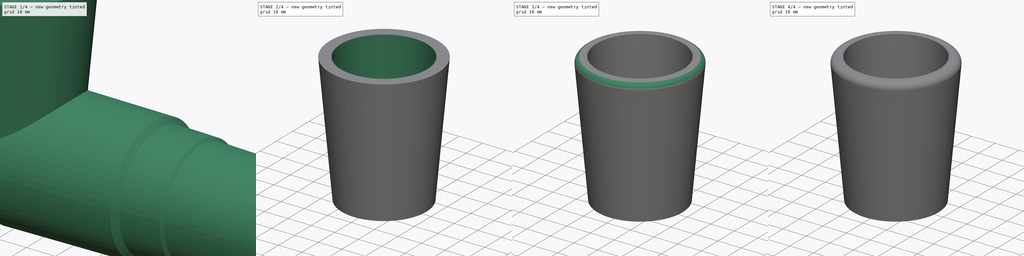
[diagram: build sequence overview — one tinted view per stage of 4, left to right]
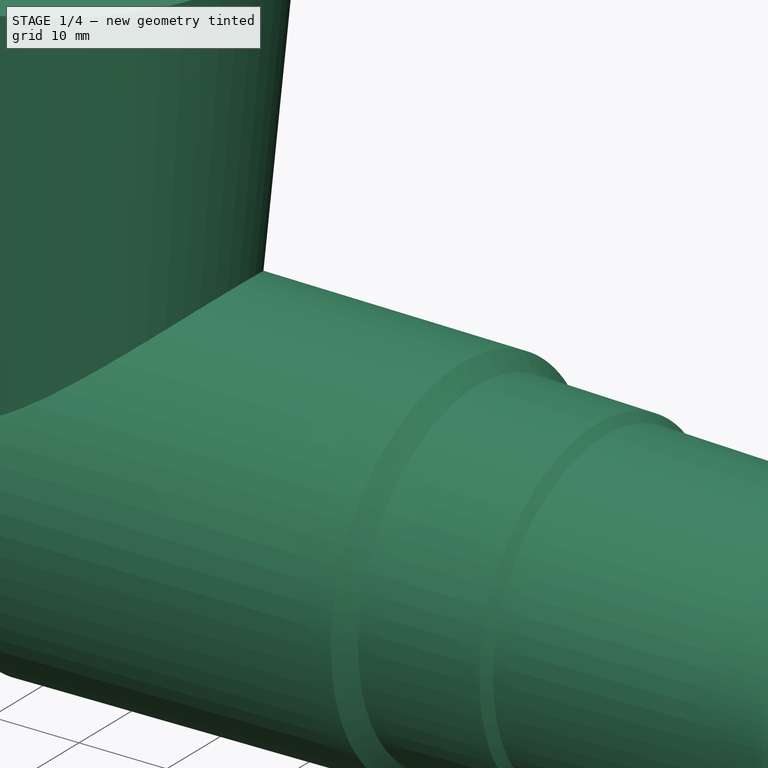
[diagram: stage 1 of 4 — iso view after this stage's code; geometry added in this stage tinted green]
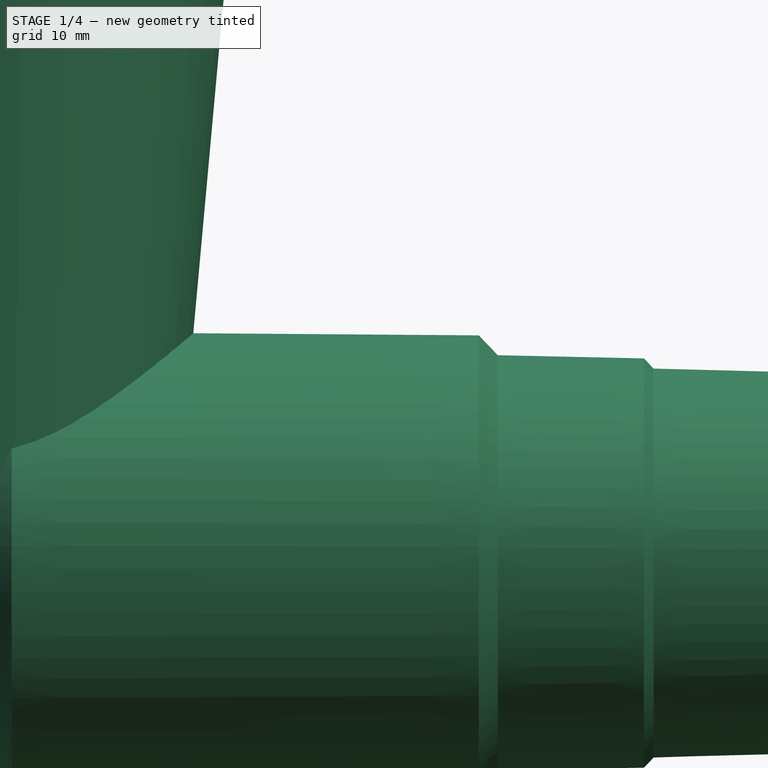
[diagram: stage 1 of 4 — front view after this stage's code; geometry added in this stage tinted green]
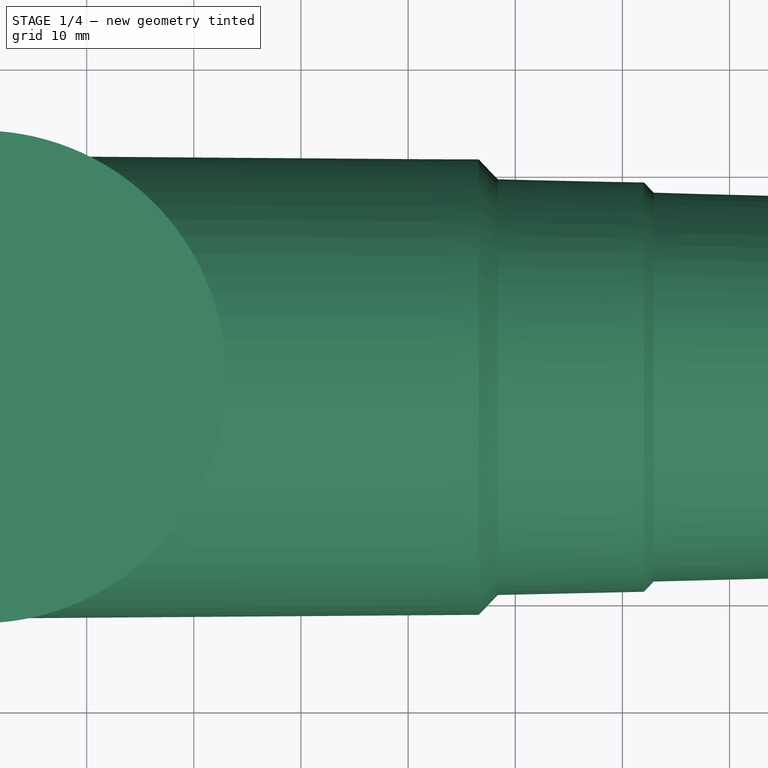
[diagram: stage 1 of 4 — top view after this stage's code; geometry added in this stage tinted green]
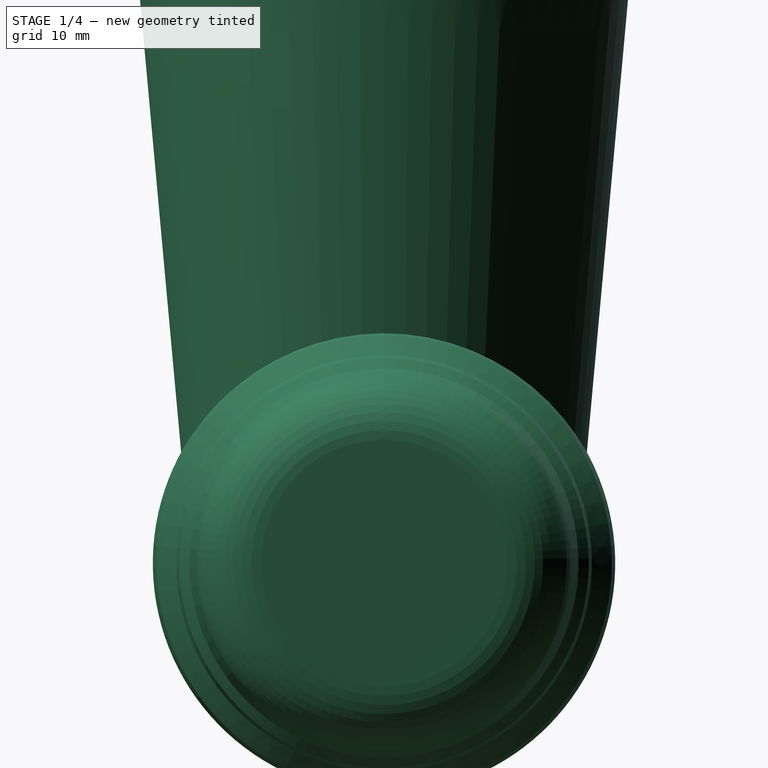
[diagram: stage 1 of 4 — right view after this stage's code; geometry added in this stage tinted green]
FCSTD DOCUMENT  (FreeCAD 0.19R)
Label: BoschPalmSander
License: Creative Commons Attribution-NonCommercial
LicenseURL: http://creativecommons.org/licenses/by-nc/4.0/
objects: Sketcher::SketchObject×2, PartDesign::Body×2, Part::Cut×2, Part::Cone×1, PartDesign::Revolution×1, PartDesign::Chamfer×1, Part::Compound×1, Part::Offset×1, PartDesign::AdditiveCylinder×1, PartDesign::Pad×1, PartDesign::PolarPattern×1, Part::Feature×1, Part::Fillet×1
note: 20 computed .brp shape members not serialized (recipe doc carries the construction recipe); baked Part::Feature solids carry a one-line shape summary decoded from their .brp

FEATURE [Part::Cone] Cone
  Angle = 360
  AttacherType = Attacher::AttachEngine3D
  Height = 55
  Radius1 = 18
  Radius2 = 23
FEATURE [Sketcher::SketchObject] Sketch
  FullyConstrained = false
  MapMode = 5
  Placement = pos=(0,0,0) rot=(1,0,0;1.5708rad)
  Support = -> [XZ_Plane]
  sketch-geometry (12):
    g0: LineSegment StartX=0 StartY=21.6 StartZ=0 EndX=46.5987 EndY=21.25 EndZ=0
    g1: LineSegment StartX=46.5987 StartY=21.25 StartZ=0 EndX=48.3691 EndY=19.4 EndZ=0
    g2: LineSegment StartX=48.3691 StartY=19.4 StartZ=0 EndX=62.0091 EndY=19.1 EndZ=0
    g3: LineSegment StartX=62.0091 StartY=19.1 StartZ=0 EndX=62.9111 EndY=18.15 EndZ=0
    g4: LineSegment StartX=62.9111 StartY=18.15 StartZ=0 EndX=87.989 EndY=17.5 EndZ=0
    g5: LineSegment StartX=98.5 StartY=0 StartZ=0 EndX=0 EndY=0 EndZ=0
    g6: LineSegment StartX=0 StartY=0 StartZ=0 EndX=0 EndY=21.6 EndZ=0
    g7: LineSegment StartX=46.5987 StartY=21.25 StartZ=0 EndX=48.3691 EndY=19.4 EndZ=0
    g8: LineSegment StartX=62.0091 StartY=19.1 StartZ=0 EndX=62.9111 EndY=18.15 EndZ=0
    g9: LineSegment StartX=87.989 StartY=17.5 StartZ=0 EndX=92.5 EndY=17.5 EndZ=0
    g10: ArcOfCircle CenterX=92.5 CenterY=11.5 CenterZ=0 NormalX=0 NormalY=0 NormalZ=1 AngleXU=0 Radius=6 StartAngle=1.66667e-07 EndAngle=1.5708
    g11: LineSegment StartX=98.5 StartY=11.5 StartZ=0 EndX=98.5 EndY=0 EndZ=0
  constraints (34):
    c: PointOnObject(g0,g-2)
    c: Coincident(g0,g1)
    c: Coincident(g1,g2)
    c: Coincident(g3,g4)
    c: Coincident(g5,g6)
    c: Coincident(g6,g0)
    c: PointOnObject(g5,g-2)
    c: Distance(g0) = 46.6
    c: Distance(g-1,g0) = 21.6
    c: DistanceY(g0) = 21.25
    c: DistanceY(g1) = 19.4
    c: DistanceY(g2) = 19.1
    c: DistanceY(g3) = 18.15
    c: DistanceY(g4) = 17.5
    c: Horizontal(g5)
    c: PointOnObject(g7,g0)
    c: PointOnObject(g7,g2)
    c: Angle(g2,g7) = 2.35619
    c: Distance(g5) = 98.5
    c: Angle(g4,g8) = 2.35619
    c: DistanceY(g1,g7) = 1.85
    c: Coincident(g2,g3)
    c: Coincident(g2,g8)
    c: DistanceX(g2,g2) = 13.64
    c: Coincident(g3,g8)
    c: Distance(g3) = 1.31
    c: Angle(g2,g1) = 2.35619
    c: Horizontal(g9)
    c: Tangent(g10,g9) = 1.5708
    c: PointOnObject(g5,g-1)
    c: Coincident(g11,g10)
    c: Coincident(g11,g5)
    c: Vertical(g11)
    c: Coincident(g4,g9)
FEATURE [PartDesign::Revolution] Revolution
  Angle = 360
  Axis = (1,0,0)
  Base = (0,0,0)
  Placement = pos=(0,0,0) rot=(1,0,0;1.5708rad)
  Profile = -> Sketch
  ReferenceAxis = -> X_Axis
FEATURE [PartDesign::Chamfer] Chamfer
  Angle = 45
  Base = -> Revolution [Edge2]
  BaseFeature = -> Revolution
  ChamferType = 0
  FlipDirection = false
  Placement = pos=(0,0,0) rot=(1,0,0;1.5708rad)
  Size = 3
  Size2 = 1
  SupportTransform = false
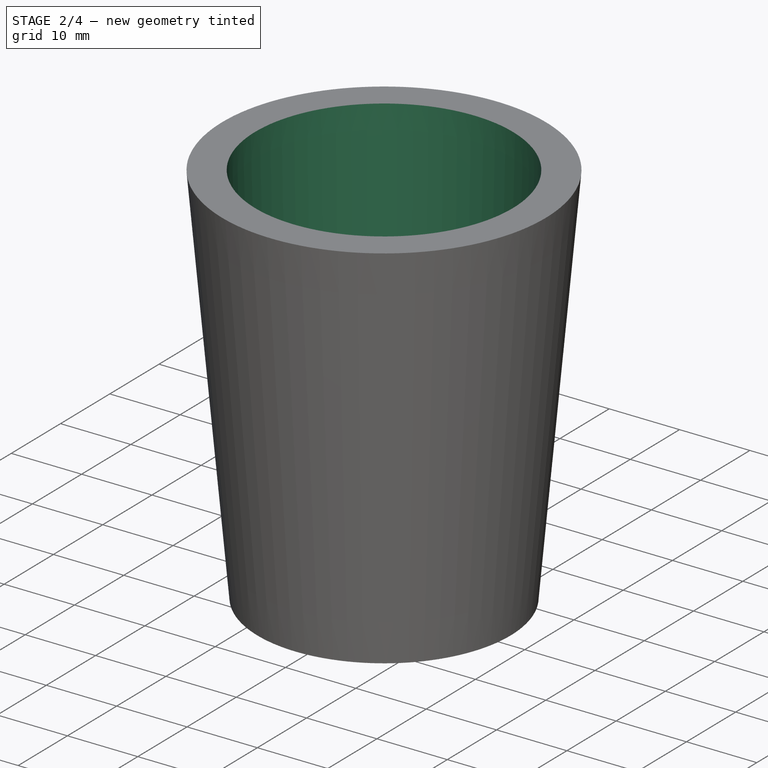
[diagram: stage 2 of 4 — iso view after this stage's code; geometry added in this stage tinted green]
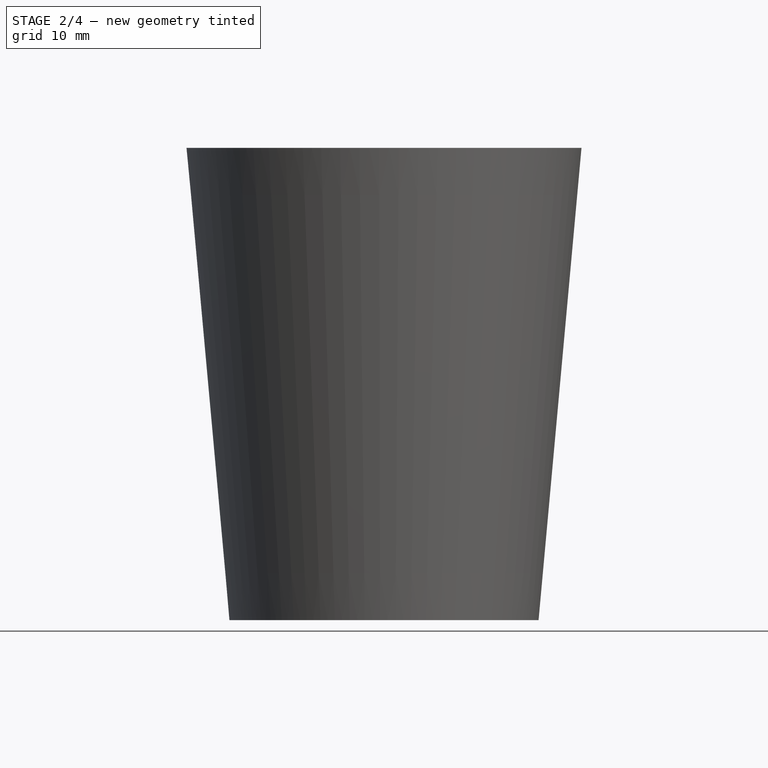
[diagram: stage 2 of 4 — front view after this stage's code; geometry added in this stage tinted green]
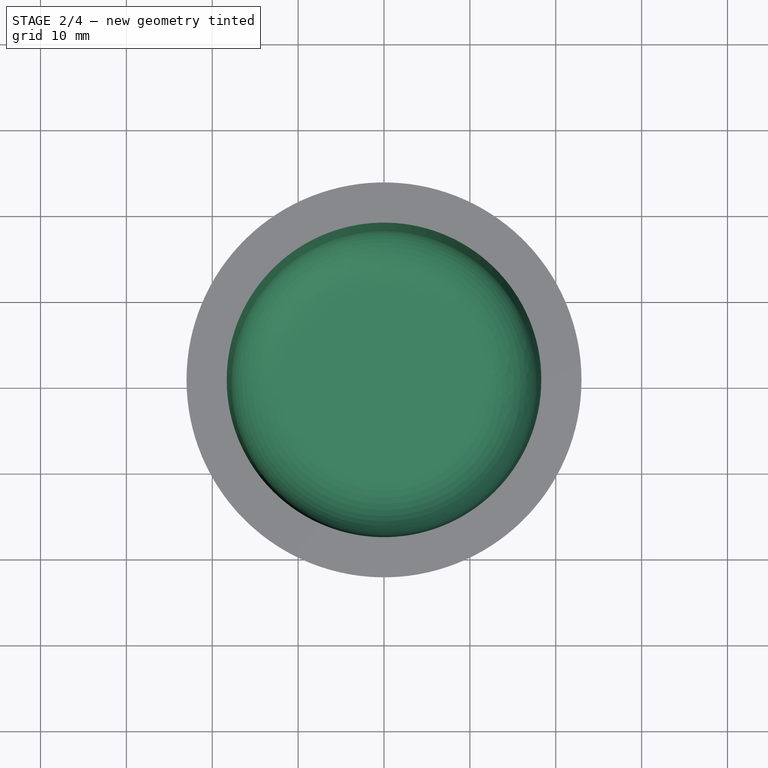
[diagram: stage 2 of 4 — top view after this stage's code; geometry added in this stage tinted green]
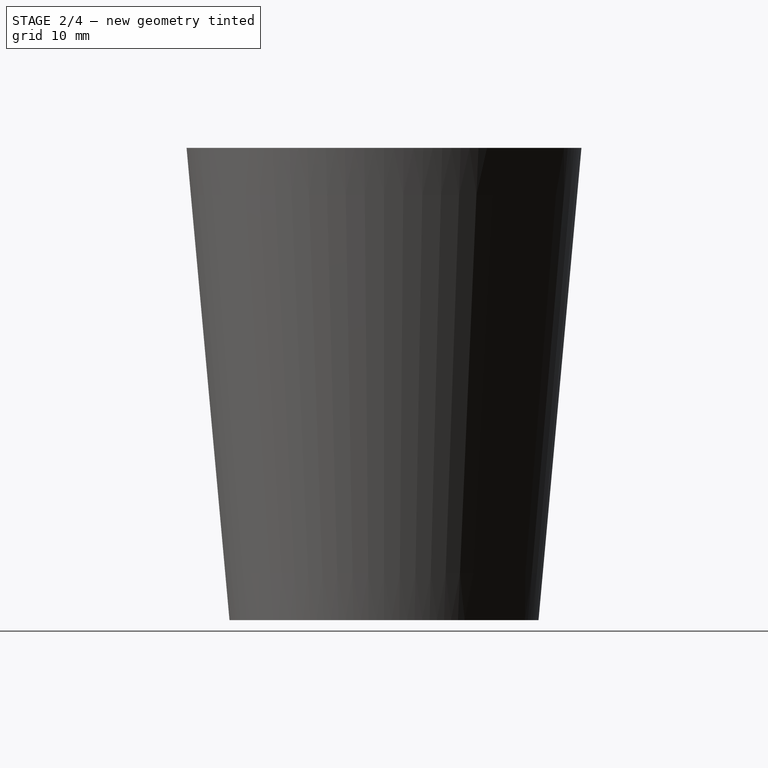
[diagram: stage 2 of 4 — right view after this stage's code; geometry added in this stage tinted green]
FEATURE [PartDesign::Body] Body  label="Nozzle"
  Group = -> [Sketch,Revolution,Chamfer]
  Origin = -> Origin
  Tip = -> Chamfer
FEATURE [Part::Compound] Compound
  Links = -> [Body]
  Placement = pos=(5.8e-15,0,0) rot=(0,0,1;0rad)
FEATURE [Part::Offset] Offset
  Fill = false
  Intersection = false
  Join = 0
  Mode = 0
  Placement = pos=(0,0,123) rot=(0,1,0;1.5708rad)
  SelfIntersection = false
  Source = -> Compound
  Value = 0.3
FEATURE [PartDesign::Body] Body001
  Group = -> [Cylinder,Sketch001,Pad,PolarPattern]
  Origin = -> Origin001
  Tip = -> PolarPattern
FEATURE [Part::Feature] Body001001
  Placement = pos=(0,0,25) rot=(0,1,0;3.14159rad)
  shape: bbox 29.87 x 29.87 x 25 mm, 27 faces (baked)
FEATURE [Part::Cut] Cut
  Base = -> Cone
  Tool = -> Offset
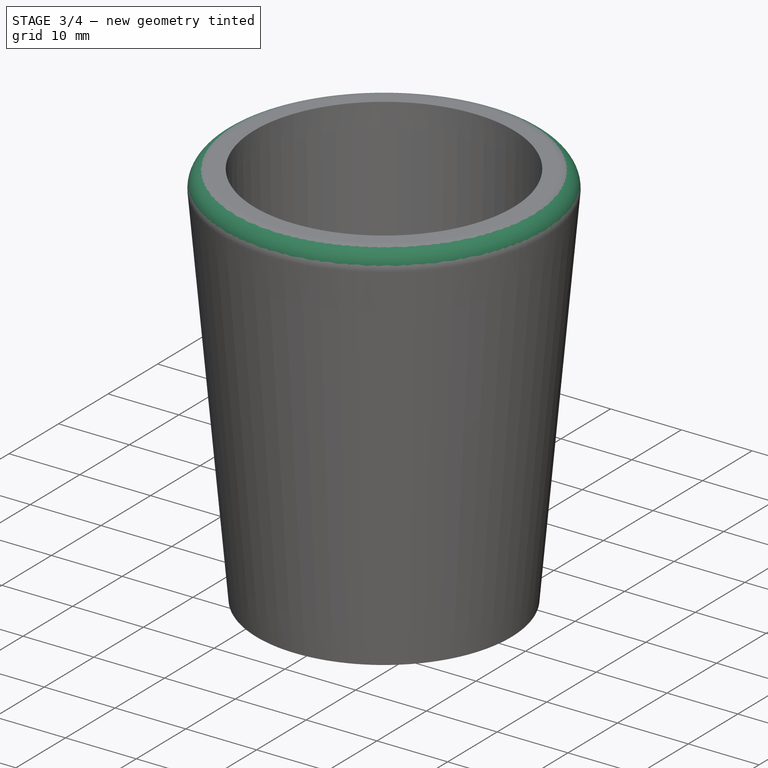
[diagram: stage 3 of 4 — iso view after this stage's code; geometry added in this stage tinted green]
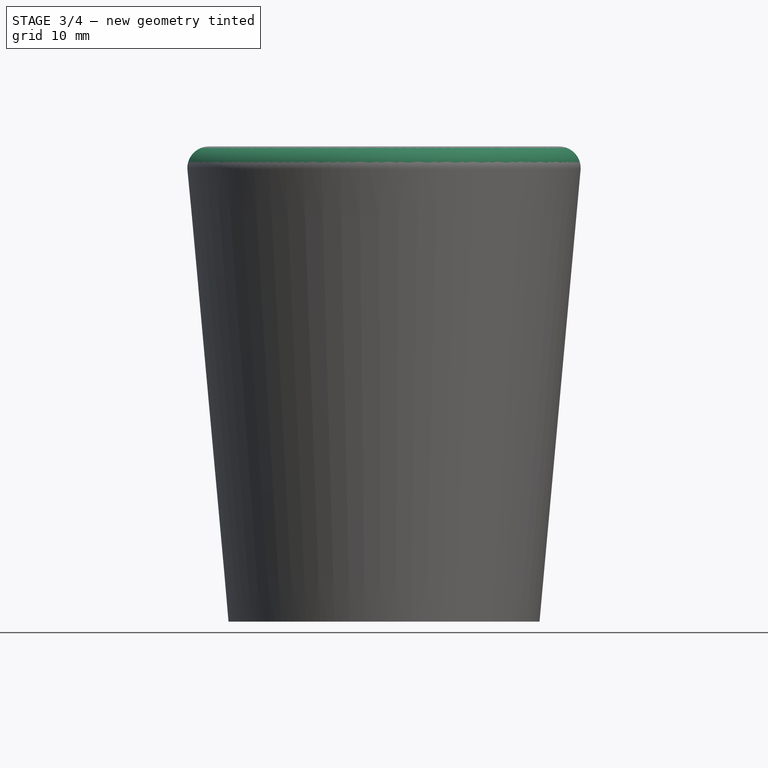
[diagram: stage 3 of 4 — front view after this stage's code; geometry added in this stage tinted green]
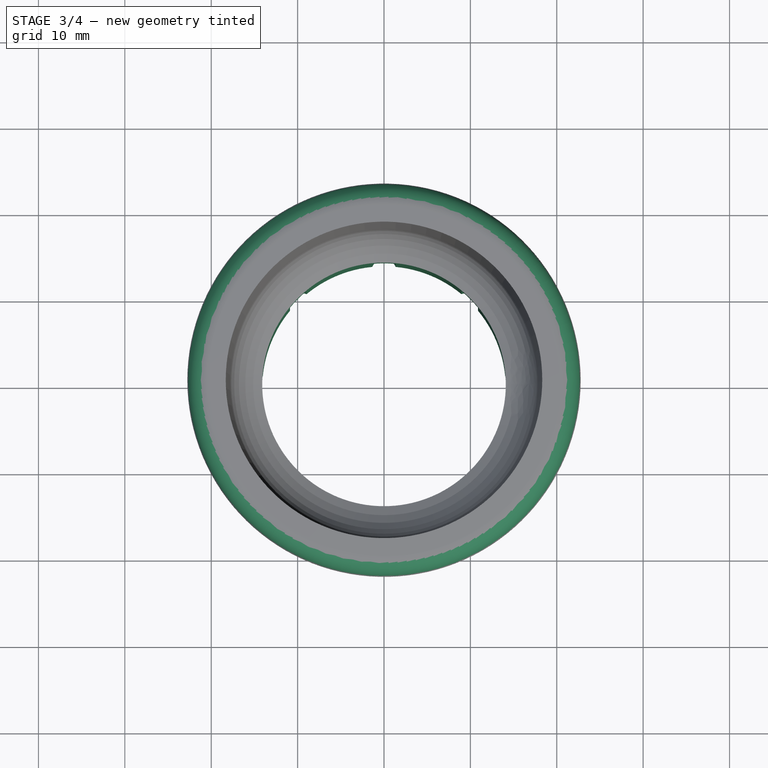
[diagram: stage 3 of 4 — top view after this stage's code; geometry added in this stage tinted green]
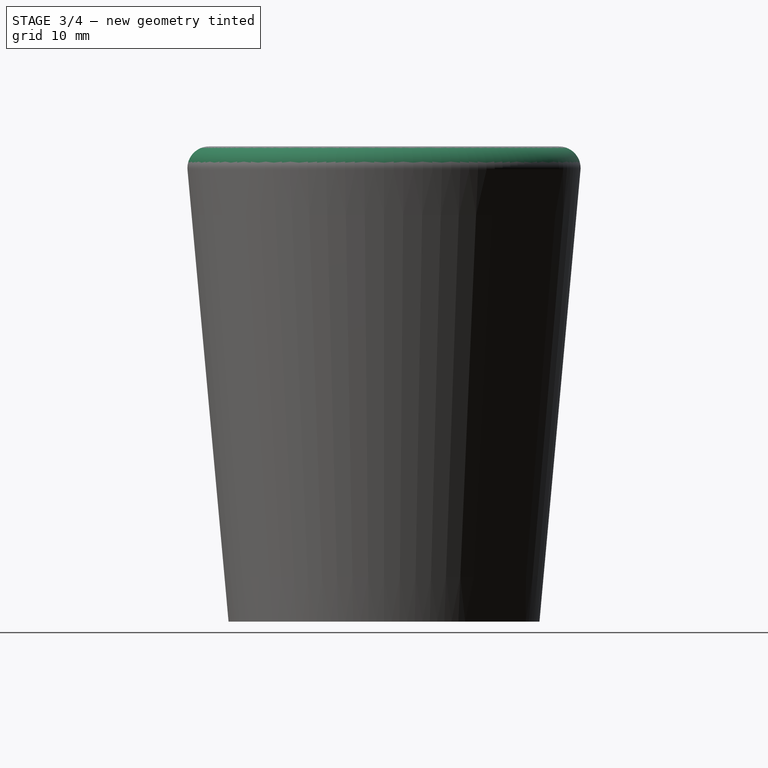
[diagram: stage 3 of 4 — right view after this stage's code; geometry added in this stage tinted green]
FEATURE [Part::Cut] Cut001
  Base = -> Cut
  Tool = -> Body001001
FEATURE [Part::Fillet] Fillet
  Base = -> Cut001
  Edges = 1 edges r=2.5: [Edge1]
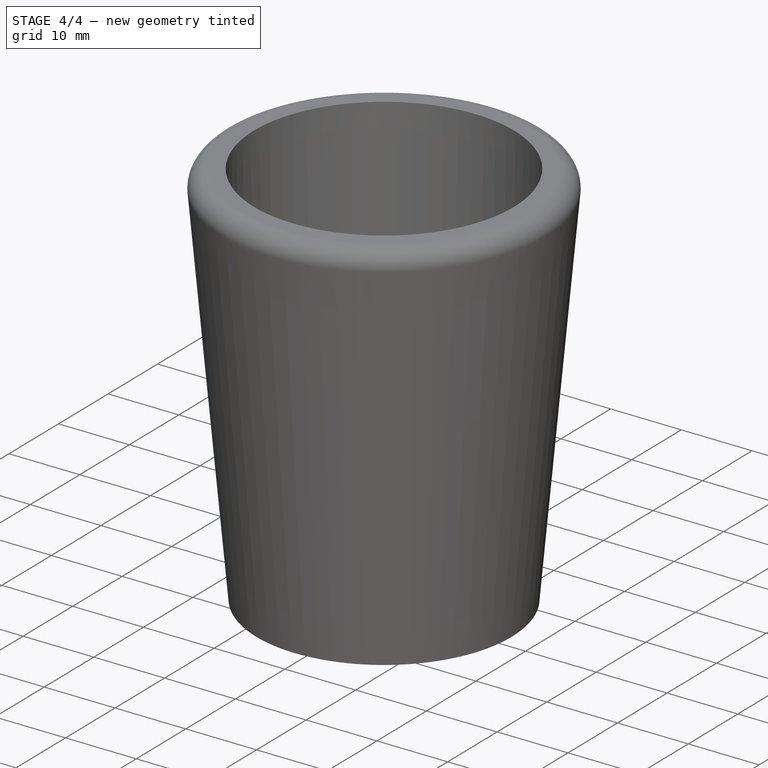
[diagram: stage 4 of 4 — iso view after this stage's code; geometry added in this stage tinted green]
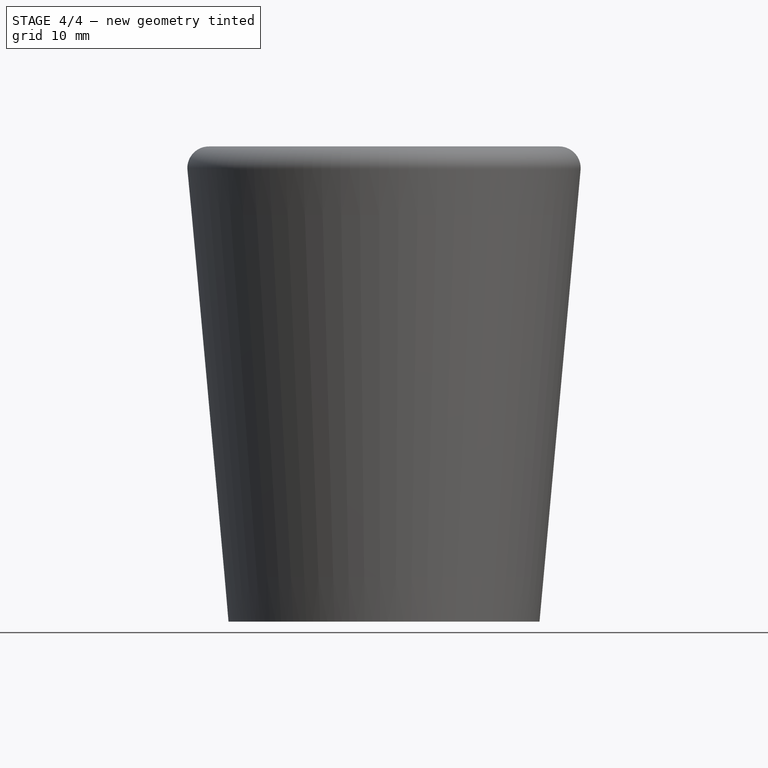
[diagram: stage 4 of 4 — front view after this stage's code; geometry added in this stage tinted green]
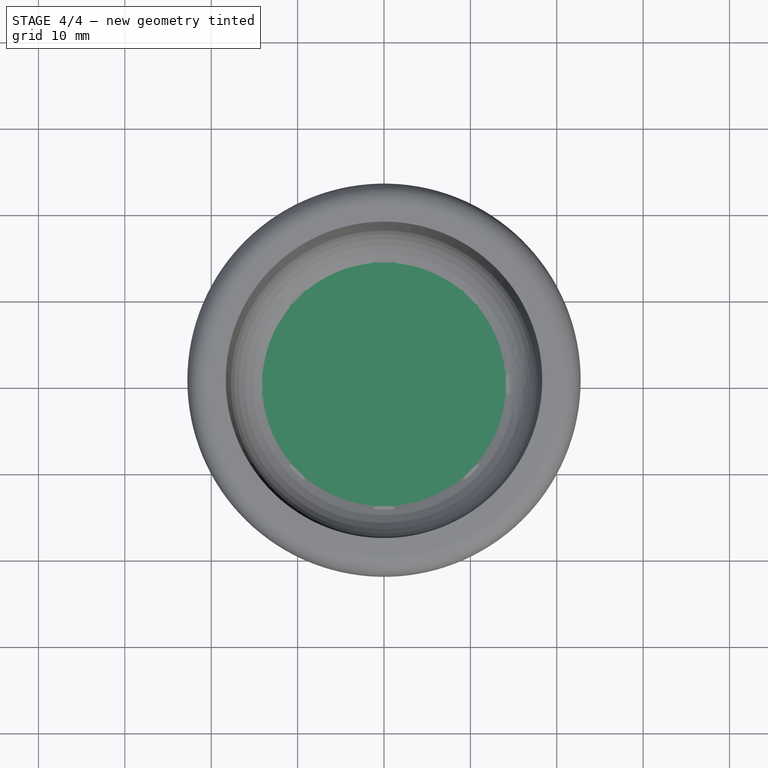
[diagram: stage 4 of 4 — top view after this stage's code; geometry added in this stage tinted green]
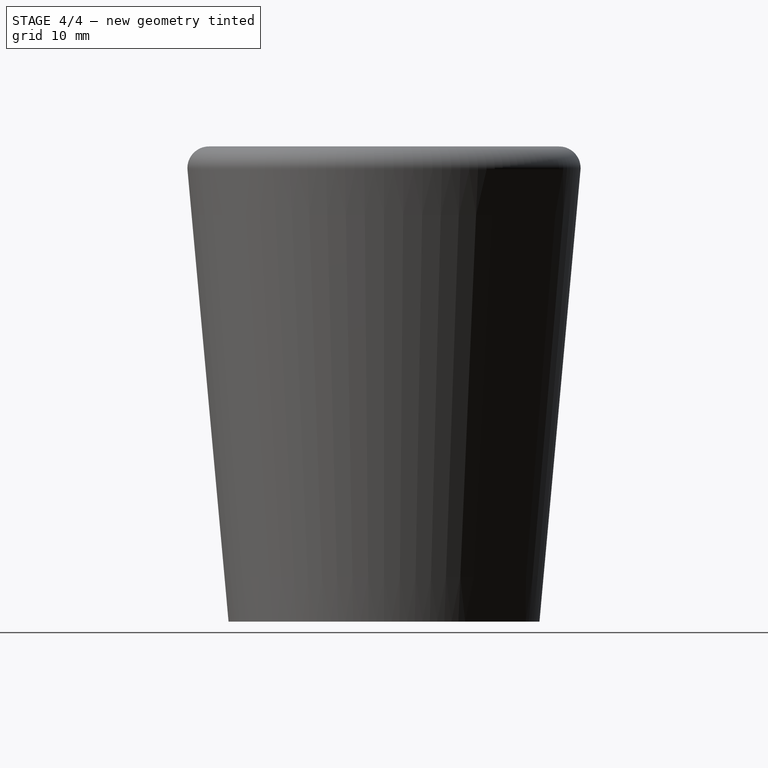
[diagram: stage 4 of 4 — right view after this stage's code; geometry added in this stage tinted green]
FEATURE [PartDesign::AdditiveCylinder] Cylinder
  Angle = 360
  AttacherType = Attacher::AttachEngine3D
  Height = 25
  Radius = 14.1
FEATURE [Sketcher::SketchObject] Sketch001
  ExternalGeometry = -> [Cylinder]
  FullyConstrained = true
  MapMode = 5
  Placement = pos=(0,0,25) rot=(0,0,1;0rad)
  Support = -> [Cylinder]
  sketch-geometry (3):
    g0: ArcOfCircle CenterX=0 CenterY=13.4727 CenterZ=0 NormalX=0 NormalY=0 NormalZ=1 AngleXU=0 Radius=1.4625 StartAngle=0.394791 EndAngle=2.7468
    g1: GeomPoint X=0 Y=14.9352 Z=0
    g2: ArcOfCircle CenterX=-3.1e-15 CenterY=0 CenterZ=0 NormalX=0 NormalY=0 NormalZ=1 AngleXU=0 Radius=14.1 StartAngle=1.4749 EndAngle=1.66669
  constraints (11):
    c: PointOnObject(g0,g-3)
    c: PointOnObject(g0,g-3)
    c: PointOnObject(g0,g-2)
    c: DistanceX(g0,g0) = 2.7
    c: PointOnObject(g1,g0)
    c: PointOnObject(g1,g-2)
    c: DistanceY(g0,g1) = 0.9
    c: Coincident(g2,g0)
    c: Coincident(g0,g2)
    c: Coincident(g2,g-3)
    c: Coincident(g2,g-1)
FEATURE [PartDesign::Pad] Pad
  BaseFeature = -> Cylinder
  Direction = (1,1,1)
  Length = 20
  Length2 = 100
  Profile = -> Sketch001
  Reversed = true
  Type = 0
FEATURE [PartDesign::PolarPattern] PolarPattern
  Angle = 360
  Axis = -> Sketch001 [N_Axis]
  BaseFeature = -> Pad
  Occurrences = 8
  Originals = -> [Pad]
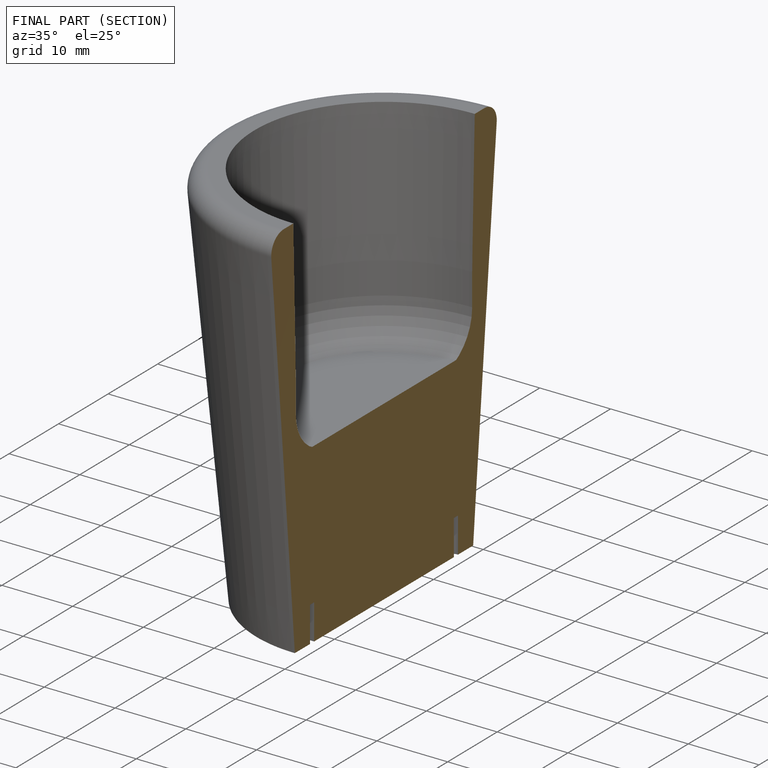
[diagram: finished part — half-section view (interior)]
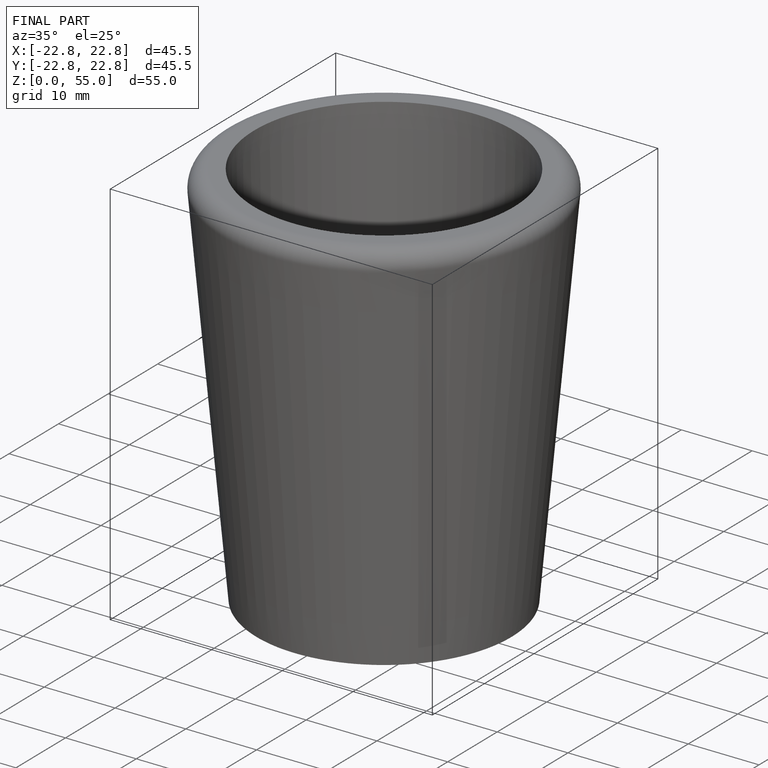
[diagram: finished part — iso view with bounding-box wireframe]
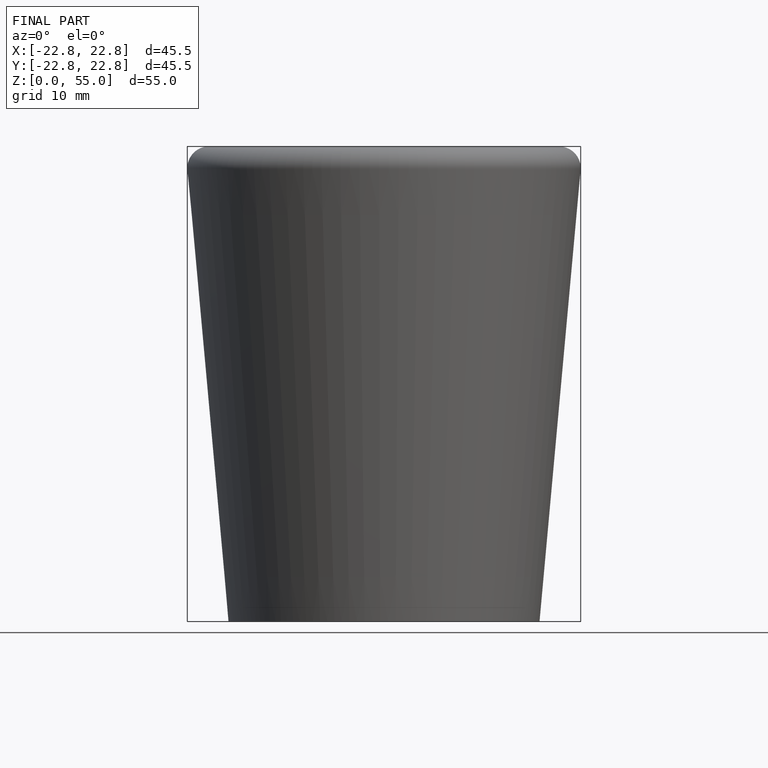
[diagram: finished part — front view with bounding-box wireframe]
